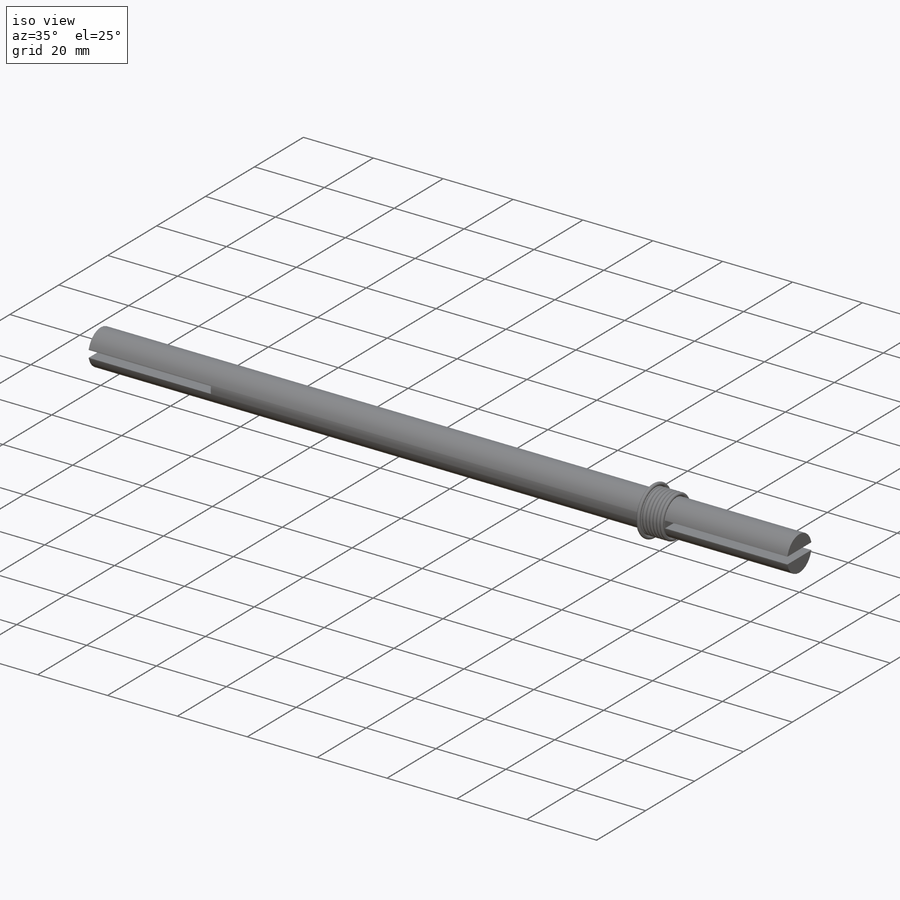
[diagram: iso view]
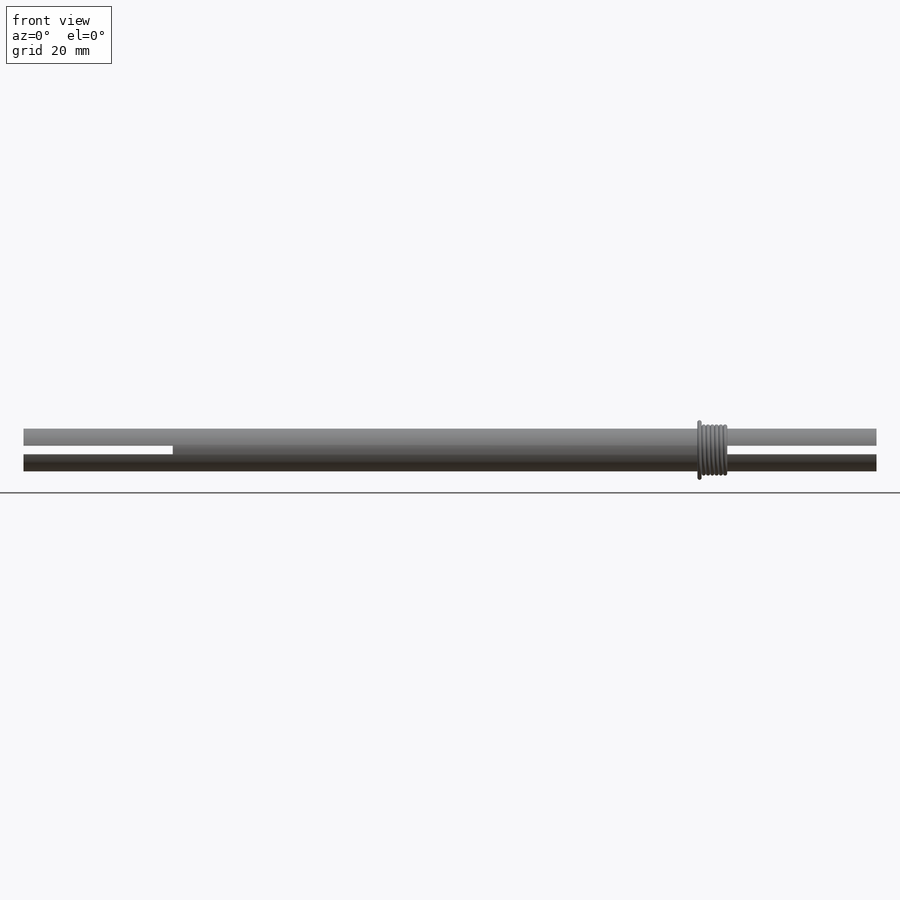
[diagram: front view]
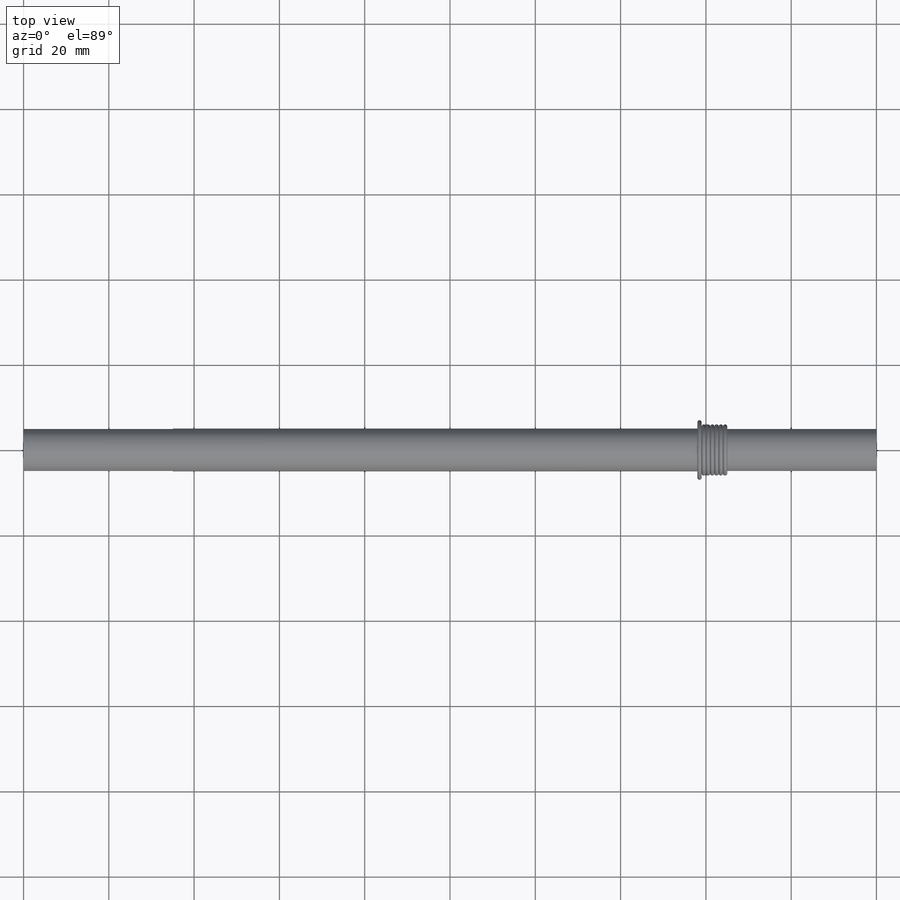
[diagram: top view]
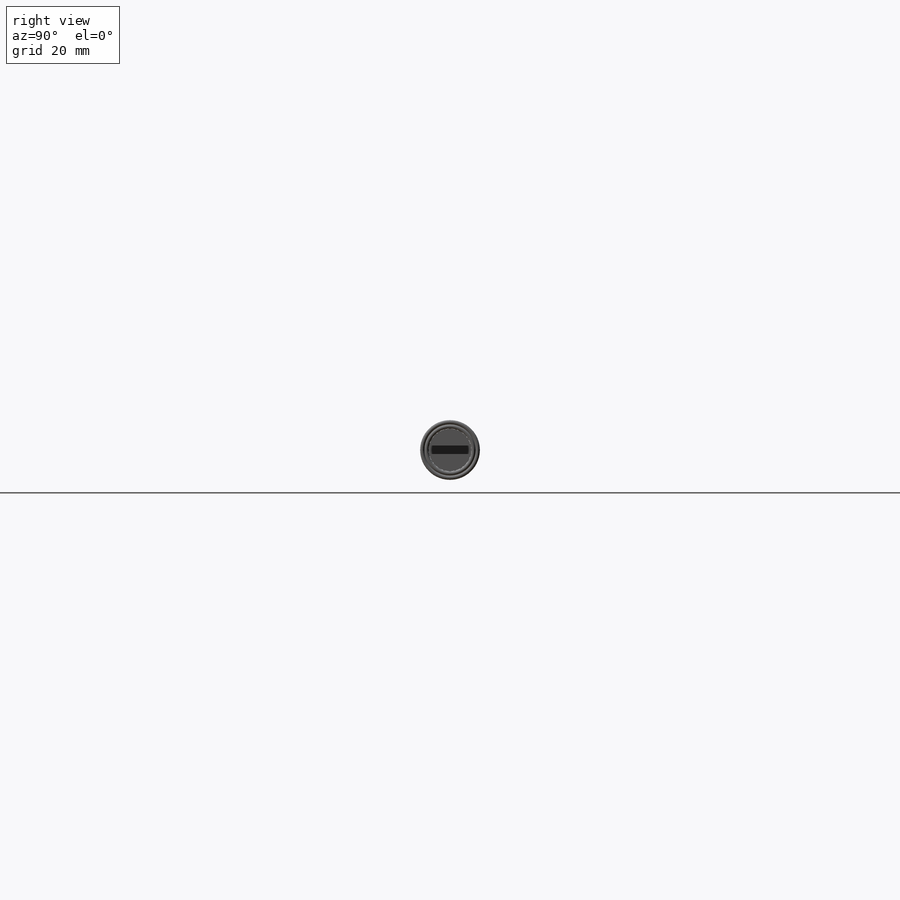
[diagram: right view]
SOLIDWORKS PART (.sldprt)
format: sldprt  version: not decoded by parser v0  size: 831,488 bytes
history: native  units: mm
features: sketch x6, plane x5, extrude x2, pattern_linear x2, material x1, cut_extrude x1, mirror x1 (+9 scaffold rows collapsed)
feature tree (27):
  scaffold x9  (default folders/planes/origin — collapsed)
  material  "材质 <未指定>"
  plane  "前视基准面"
  plane  "上视基准面"
  plane  "右视基准面"
  sketch  "草图1"  dims[D1=10.0mm]
  extrude  "凸台-拉伸1"  Depth=100mm
  plane  "基准面4"
  sketch  "草图2"  dims[D1=1.0mm D2=1.0mm D3=2.0mm]
  cut_extrude  "切除-拉伸1"  Depth=35mm
  plane  "基准面5"  Offset=6.5mm
  sketch  "草图3"  dims[D1=11.0mm]
  sketch  "草图4"  dims[D1=1.0mm]
  pattern_linear  "阵列(线性)1"  Count1=7 Count2=1 Spacing1=1mm Spacing2=50mm
  sketch  "草图5"  dims[D1=13.0mm]
  sketch  "草图6"
  extrude  "曲面-扫描2"  [1 undecoded]
  pattern_linear  "阵列(线性)2"  Count1=2 Count2=1 Spacing1=1mm Spacing2=50mm
  mirror  "镜向1"
decode coverage: 9 of 12 modeling features carry decoded parameters
note: 1 parameter value undecoded
note: suppression state not decoded; provenance and decode notes live in map.json
